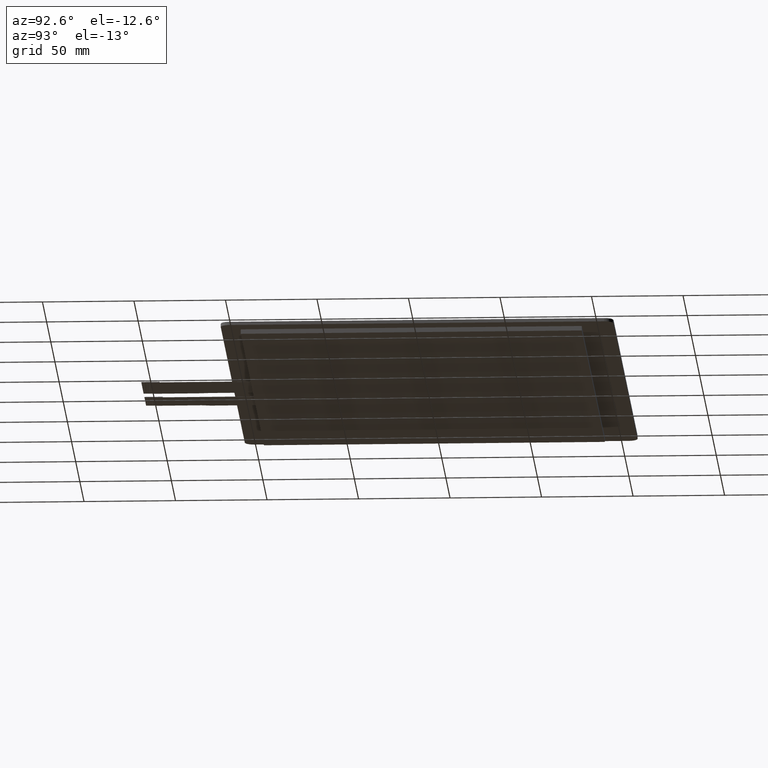
[diagram: clean part render]
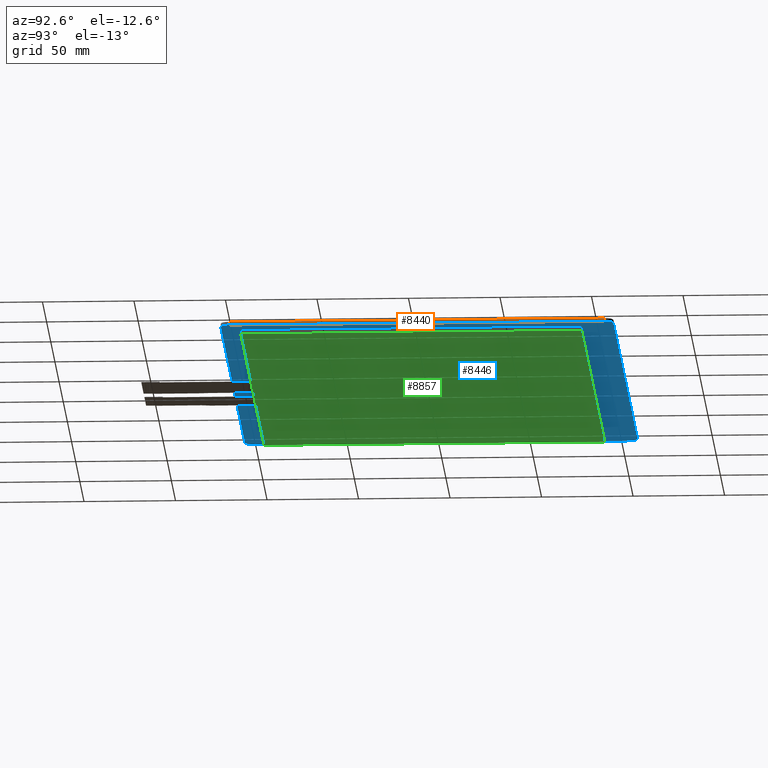
[diagram: same view with three faces highlighted in distinct colors, each labeled with its STEP entity id]
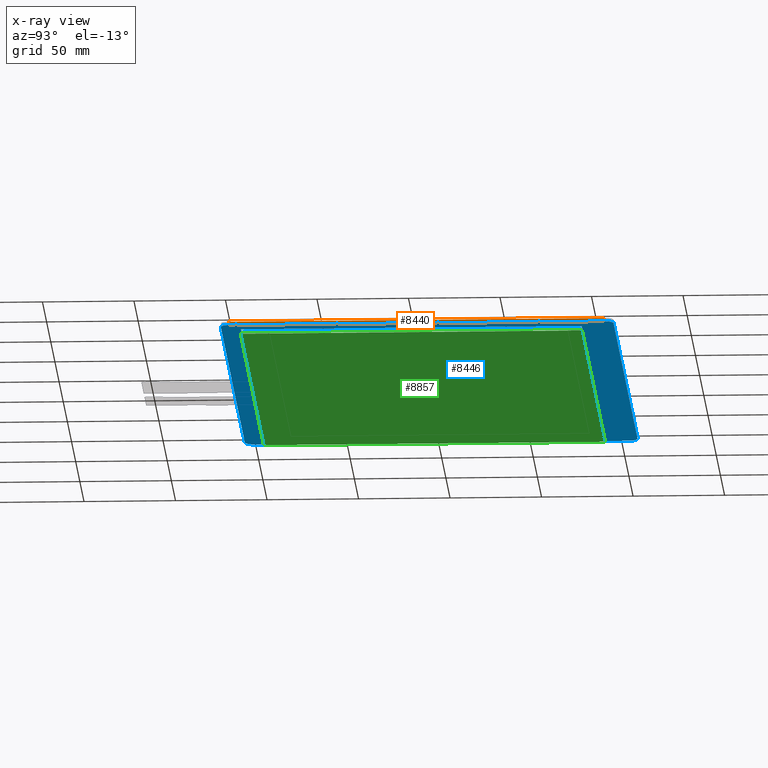
[diagram: x-ray of the same camera — body ghosted, the three highlighted faces saturated]
A machine part, auxiliary view with three faces highlighted in distinct colors.
The next image is the same camera in x-ray (body ghosted, the three faces saturated) — at least one of them is partly hidden behind the body in this view.
Their STEP definitions:

[orange] entity #8440 — the highlighted planar face has unit normal (1, 0, 0).
#73=FACE_OUTER_BOUND('',#498,.T.);
#498=EDGE_LOOP('',(#5531,#5532,#5533,#5534));
#932=LINE('',#11464,#2177);
#934=LINE('',#11470,#2179);
#935=LINE('',#11472,#2180);
#936=LINE('',#11473,#2181);
#2177=VECTOR('',#9345,10.);
#2179=VECTOR('',#9351,10.);
#2180=VECTOR('',#9352,10.);
#2181=VECTOR('',#9353,10.);
#3419=VERTEX_POINT('',#11461);
#3420=VERTEX_POINT('',#11463);
#3422=VERTEX_POINT('',#11469);
#3423=VERTEX_POINT('',#11471);
#4261=EDGE_CURVE('',#3419,#3420,#932,.T.);
#4264=EDGE_CURVE('',#3422,#3419,#934,.T.);
#4265=EDGE_CURVE('',#3423,#3422,#935,.T.);
#4266=EDGE_CURVE('',#3423,#3420,#936,.T.);
#5531=ORIENTED_EDGE('',*,*,#4261,.F.);
#5532=ORIENTED_EDGE('',*,*,#4264,.F.);
#5533=ORIENTED_EDGE('',*,*,#4265,.F.);
#5534=ORIENTED_EDGE('',*,*,#4266,.T.);
#8019=PLANE('',#8889);
#8440=ADVANCED_FACE('',(#73),#8019,.T.);
#8889=AXIS2_PLACEMENT_3D('',#11468,#9349,#9350);
#9345=DIRECTION('',(0.,0.,-1.));
#9349=DIRECTION('center_axis',(1.,0.,0.));
#9350=DIRECTION('ref_axis',(0.,1.,0.));
#9351=DIRECTION('',(0.,1.,0.));
#9352=DIRECTION('',(0.,0.,1.));
#9353=DIRECTION('',(0.,1.,0.));
#11461=CARTESIAN_POINT('',(149.7,102.25,1.8));
#11463=CARTESIAN_POINT('',(149.7,102.25,0.));
#11464=CARTESIAN_POINT('',(149.7,102.25,0.));
#11468=CARTESIAN_POINT('Origin',(149.7,-107.35,0.));
#11469=CARTESIAN_POINT('',(149.7,-102.35,1.8));
#11470=CARTESIAN_POINT('',(149.7,-107.35,1.8));
#11471=CARTESIAN_POINT('',(149.7,-102.35,0.));
#11472=CARTESIAN_POINT('',(149.7,-102.35,0.));
#11473=CARTESIAN_POINT('',(149.7,-107.35,0.));

[blue] entity #8446 — the highlighted planar face has unit normal (0, 0, 1).
#31=FACE_BOUND('',#506,.T.);
#51=CIRCLE('',#8888,5.);
#55=CIRCLE('',#8895,5.);
#56=CIRCLE('',#8898,5.);
#57=CIRCLE('',#8900,5.);
#79=FACE_OUTER_BOUND('',#505,.T.);
#505=EDGE_LOOP('',(#5563,#5564,#5565,#5566,#5567,#5568,#5569,#5570));
#506=EDGE_LOOP('',(#5571,#5572,#5573,#5574));
#936=LINE('',#11473,#2181);
#946=LINE('',#11502,#2191);
#950=LINE('',#11513,#2195);
#951=LINE('',#11514,#2196);
#952=LINE('',#11517,#2197);
#953=LINE('',#11519,#2198);
#954=LINE('',#11521,#2199);
#955=LINE('',#11522,#2200);
#2181=VECTOR('',#9353,10.);
#2191=VECTOR('',#9377,10.);
#2195=VECTOR('',#9391,10.);
#2196=VECTOR('',#9392,10.);
#2197=VECTOR('',#9393,10.);
#2198=VECTOR('',#9394,10.);
#2199=VECTOR('',#9395,10.);
#2200=VECTOR('',#9396,10.);
#3420=VERTEX_POINT('',#11463);
#3421=VERTEX_POINT('',#11465);
#3423=VERTEX_POINT('',#11471);
#3433=VERTEX_POINT('',#11495);
#3434=VERTEX_POINT('',#11497);
#3435=VERTEX_POINT('',#11501);
#3436=VERTEX_POINT('',#11505);
#3437=VERTEX_POINT('',#11509);
#3438=VERTEX_POINT('',#11515);
#3439=VERTEX_POINT('',#11516);
#3440=VERTEX_POINT('',#11518);
#3441=VERTEX_POINT('',#11520);
#4262=EDGE_CURVE('',#3420,#3421,#51,.T.);
#4266=EDGE_CURVE('',#3423,#3420,#936,.T.);
#4278=EDGE_CURVE('',#3433,#3434,#55,.T.);
#4280=EDGE_CURVE('',#3434,#3435,#946,.T.);
#4282=EDGE_CURVE('',#3435,#3436,#56,.T.);
#4285=EDGE_CURVE('',#3437,#3423,#57,.T.);
#4286=EDGE_CURVE('',#3436,#3437,#950,.T.);
#4287=EDGE_CURVE('',#3421,#3433,#951,.T.);
#4288=EDGE_CURVE('',#3438,#3439,#952,.T.);
#4289=EDGE_CURVE('',#3439,#3440,#953,.T.);
#4290=EDGE_CURVE('',#3440,#3441,#954,.T.);
#4291=EDGE_CURVE('',#3441,#3438,#955,.T.);
#5563=ORIENTED_EDGE('',*,*,#4262,.F.);
#5564=ORIENTED_EDGE('',*,*,#4266,.F.);
#5565=ORIENTED_EDGE('',*,*,#4285,.F.);
#5566=ORIENTED_EDGE('',*,*,#4286,.F.);
#5567=ORIENTED_EDGE('',*,*,#4282,.F.);
#5568=ORIENTED_EDGE('',*,*,#4280,.F.);
#5569=ORIENTED_EDGE('',*,*,#4278,.F.);
#5570=ORIENTED_EDGE('',*,*,#4287,.F.);
#5571=ORIENTED_EDGE('',*,*,#4288,.T.);
#5572=ORIENTED_EDGE('',*,*,#4289,.T.);
#5573=ORIENTED_EDGE('',*,*,#4290,.T.);
#5574=ORIENTED_EDGE('',*,*,#4291,.T.);
#8022=PLANE('',#8901);
#8446=ADVANCED_FACE('',(#79,#31),#8022,.F.);
#8888=AXIS2_PLACEMENT_3D('',#11466,#9346,#9347);
#8895=AXIS2_PLACEMENT_3D('',#11498,#9372,#9373);
#8898=AXIS2_PLACEMENT_3D('',#11506,#9381,#9382);
#8900=AXIS2_PLACEMENT_3D('',#11511,#9387,#9388);
#8901=AXIS2_PLACEMENT_3D('',#11512,#9389,#9390);
#9346=DIRECTION('center_axis',(0.,0.,1.));
#9347=DIRECTION('ref_axis',(0.707106781186547,0.707106781186547,0.));
#9353=DIRECTION('',(0.,1.,0.));
#9372=DIRECTION('center_axis',(0.,0.,1.));
#9373=DIRECTION('ref_axis',(-0.707106781186547,0.707106781186547,0.));
#9377=DIRECTION('',(1.65550497614189E-16,-1.,0.));
#9381=DIRECTION('center_axis',(0.,0.,1.));
#9382=DIRECTION('ref_axis',(-0.707106781186547,-0.707106781186547,0.));
#9387=DIRECTION('center_axis',(0.,0.,1.));
#9388=DIRECTION('ref_axis',(0.707106781186547,-0.707106781186547,0.));
#9389=DIRECTION('center_axis',(0.,0.,1.));
#9390=DIRECTION('ref_axis',(1.,0.,0.));
#9391=DIRECTION('',(1.,1.77932237669474E-16,0.));
#9392=DIRECTION('',(-1.,0.,0.));
#9393=DIRECTION('',(9.53492667418277E-17,-1.,0.));
#9394=DIRECTION('',(1.,1.909376753207E-16,0.));
#9395=DIRECTION('',(-1.90698533483655E-16,1.,0.));
#9396=DIRECTION('',(-1.,0.,0.));
#11463=CARTESIAN_POINT('',(149.7,102.25,0.));
#11465=CARTESIAN_POINT('',(144.7,107.25,0.));
#11466=CARTESIAN_POINT('Origin',(144.7,102.25,0.));
#11471=CARTESIAN_POINT('',(149.7,-102.35,0.));
#11473=CARTESIAN_POINT('',(149.7,-107.35,0.));
#11495=CARTESIAN_POINT('',(-144.8,107.25,0.));
#11497=CARTESIAN_POINT('',(-149.8,102.25,0.));
#11498=CARTESIAN_POINT('Origin',(-144.8,102.25,0.));
#11501=CARTESIAN_POINT('',(-149.8,-102.35,0.));
#11502=CARTESIAN_POINT('',(-149.8,107.25,0.));
#11505=CARTESIAN_POINT('',(-144.8,-107.35,0.));
#11506=CARTESIAN_POINT('Origin',(-144.8,-102.35,0.));
#11509=CARTESIAN_POINT('',(144.7,-107.35,0.));
#11511=CARTESIAN_POINT('Origin',(144.7,-102.35,0.));
#11512=CARTESIAN_POINT('Origin',(-0.0500000000000078,-0.0499999999999634,
0.));
#11513=CARTESIAN_POINT('',(-149.8,-107.35,0.));
#11514=CARTESIAN_POINT('',(149.7,107.25,0.));
#11515=CARTESIAN_POINT('',(-140.6,89.6000000000001,0.));
#11516=CARTESIAN_POINT('',(-140.6,-96.7,0.));
#11517=CARTESIAN_POINT('',(-140.6,89.6000000000001,0.));
#11518=CARTESIAN_POINT('',(138.5,-96.6999999999999,0.));
#11519=CARTESIAN_POINT('',(-140.6,-96.7,0.));
#11520=CARTESIAN_POINT('',(138.5,89.6000000000001,0.));
#11521=CARTESIAN_POINT('',(138.5,-96.6999999999999,0.));
#11522=CARTESIAN_POINT('',(138.5,89.6000000000001,0.));

[green] entity #8857 — the highlighted planar face has unit normal (0, 0, -1).
#490=FACE_OUTER_BOUND('',#919,.T.);
#919=EDGE_LOOP('',(#8009,#8010,#8011,#8012));
#2158=LINE('',#13938,#3403);
#2160=LINE('',#13942,#3405);
#2162=LINE('',#13946,#3407);
#2164=LINE('',#13949,#3409);
#3403=VECTOR('',#11417,10.);
#3405=VECTOR('',#11421,10.);
#3407=VECTOR('',#11425,10.);
#3409=VECTOR('',#11429,10.);
#4244=VERTEX_POINT('',#13935);
#4245=VERTEX_POINT('',#13937);
#4246=VERTEX_POINT('',#13941);
#4247=VERTEX_POINT('',#13945);
#5496=EDGE_CURVE('',#4245,#4244,#2158,.T.);
#5498=EDGE_CURVE('',#4246,#4245,#2160,.T.);
#5500=EDGE_CURVE('',#4247,#4246,#2162,.T.);
#5502=EDGE_CURVE('',#4244,#4247,#2164,.T.);
#8009=ORIENTED_EDGE('',*,*,#5502,.T.);
#8010=ORIENTED_EDGE('',*,*,#5500,.T.);
#8011=ORIENTED_EDGE('',*,*,#5498,.T.);
#8012=ORIENTED_EDGE('',*,*,#5496,.T.);
#8432=PLANE('',#9314);
#8857=ADVANCED_FACE('',(#490),#8432,.T.);
#9314=AXIS2_PLACEMENT_3D('',#13950,#11430,#11431);
#11417=DIRECTION('',(-9.53492667418277E-17,1.,0.));
#11421=DIRECTION('',(-1.,-1.909376753207E-16,0.));
#11425=DIRECTION('',(1.90698533483655E-16,-1.,0.));
#11429=DIRECTION('',(1.,0.,0.));
#11430=DIRECTION('center_axis',(0.,0.,-1.));
#11431=DIRECTION('ref_axis',(-1.,0.,0.));
#13935=CARTESIAN_POINT('',(-140.6,89.6000000000001,-2.5));
#13937=CARTESIAN_POINT('',(-140.6,-96.7,-2.5));
#13938=CARTESIAN_POINT('',(-140.6,89.6000000000001,-2.5));
#13941=CARTESIAN_POINT('',(138.5,-96.6999999999999,-2.5));
#13942=CARTESIAN_POINT('',(-140.6,-96.7,-2.5));
#13945=CARTESIAN_POINT('',(138.5,89.6000000000001,-2.5));
#13946=CARTESIAN_POINT('',(138.5,-96.6999999999999,-2.5));
#13949=CARTESIAN_POINT('',(138.5,89.6000000000001,-2.5));
#13950=CARTESIAN_POINT('Origin',(-1.04999999999999,-3.54999999999997,-2.5));